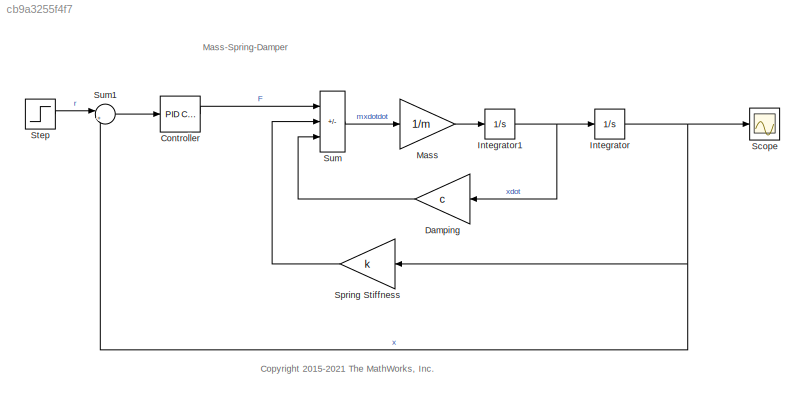
MODEL slx_cb9a3255f4f7
KIND model
CONFIG AbsTol = auto
CONFIG EnableMultiTasking = on
CONFIG FixedStep = auto
CONFIG MaxStep = 0.01
CONFIG MinStep = auto
CONFIG RelTol = 1e-3
CONFIG SampleTimeConstraint = Unconstrained
CONFIG SolverName = ode45
CONFIG StartTime = 0.0
CONFIG StopTime = 30
WORKSPACE source: mxarray member
WORKSPACE c = 1
WORKSPACE k = 2
WORKSPACE m = 3
BLOCK [Reference] Controller  REF=slpidlib/PID Controller
  SourceBlock = slpidlib/PID Controller
  SourceType = PID 1dof
BLOCK [Gain] Damping
  Gain = c
BLOCK [Integrator] Integrator
BLOCK [Integrator] Integrator1
BLOCK [Gain] Mass
  Gain = 1/m
BLOCK [Scope] Scope
  Floating = off
  NumInputPorts = 1
  ScopeSpecificationString = Simulink.scopes.TimeScopeBlockCfg('CurrentConfiguration', extmgr.ConfigurationSet(extmgr.Configuration('Core','General UI',true),extmgr.Configuration('Core','Source UI',true),extmgr.Configuration('Sources','WiredSimulink',true),extmgr.Configuration('Visuals','Time Domain',true,'SerializedDisplays',{struct('MinYLimReal','-0.1349','MaxYLimReal','1.2141','YLabelReal','','MinYLimMag','0.00000','MaxYLi...<+1344ch>
BLOCK [Gain] Spring Stiffness
  Gain = k
BLOCK [Step] Step
  SampleTime = 0
BLOCK [Sum] Sum
  IconShape = rectangular
  Inputs = |+--
BLOCK [Sum] Sum1
  Inputs = |+-
ANNOTATION (root): <copyright redacted>
ANNOTATION (root): Mass-Spring-Damper
LINE Controller:1 -> Sum:1
LINE Damping:1 -> Sum:3
NET Integrator1:1 -> Damping:1, Integrator:1
NET Integrator:1 -> Scope:1, Spring Stiffness:1, Sum1:2
LINE Mass:1 -> Integrator1:1
LINE Spring Stiffness:1 -> Sum:2
LINE Step:1 -> Sum1:1
LINE Sum1:1 -> Controller:1
LINE Sum:1 -> Mass:1
note: NET lines group one-source signal fan-out (src -> all destinations, sorted); 1:1 wires keep LINE
